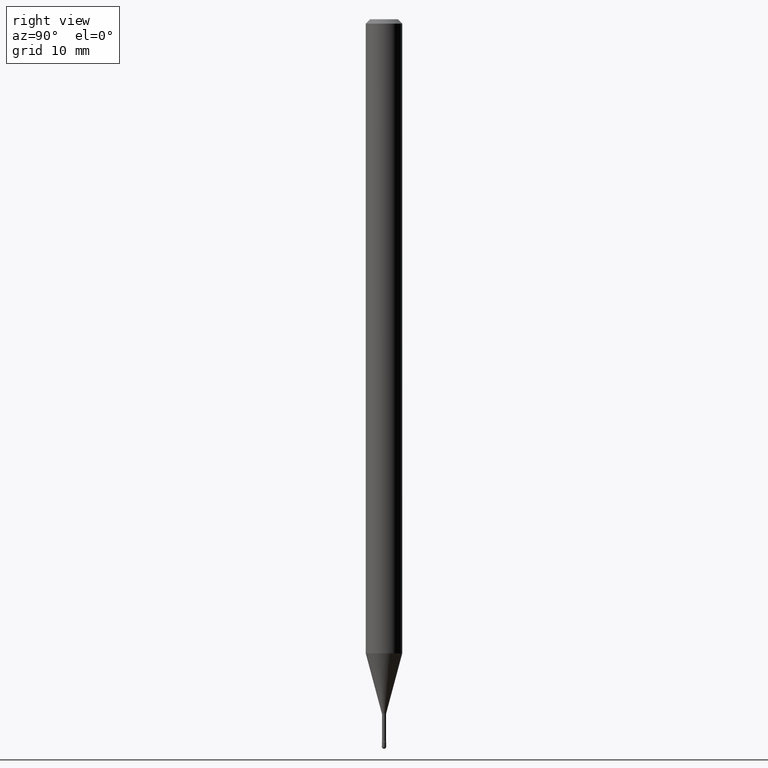
[diagram: clean part render]
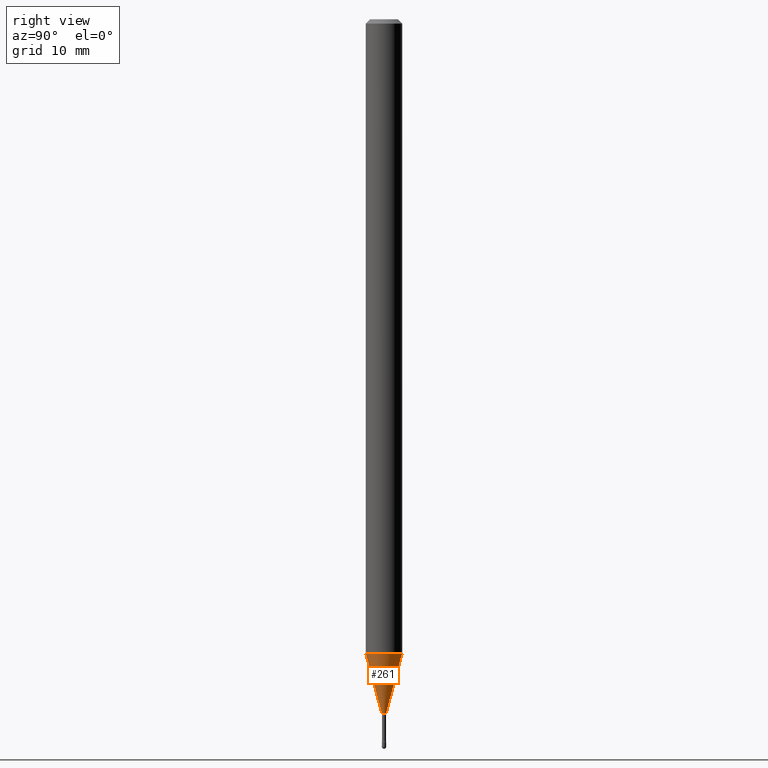
[diagram: same view with one face highlighted and labeled with its STEP entity id]
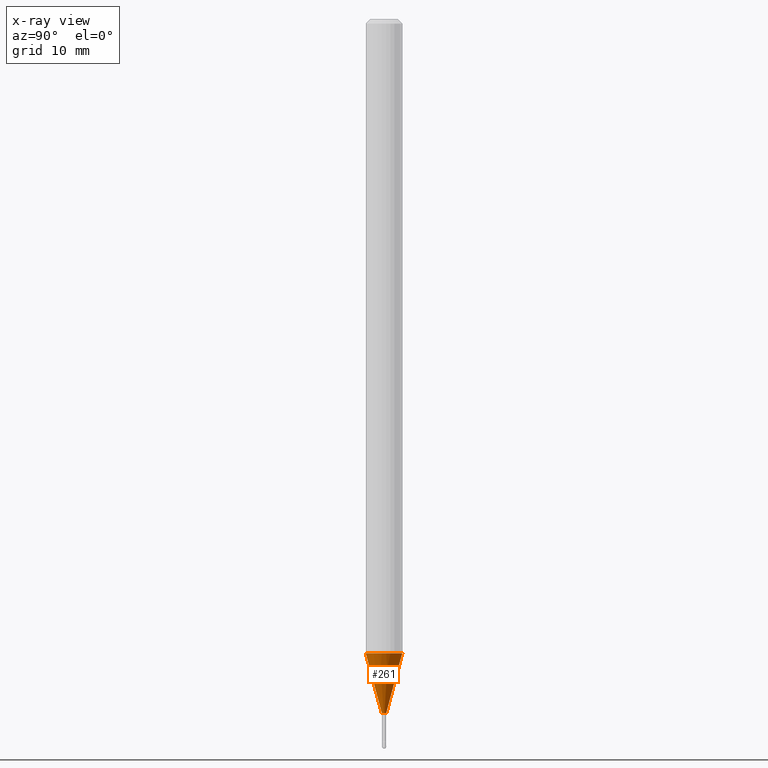
[diagram: x-ray of the same camera — body ghosted, the highlighted face saturated]
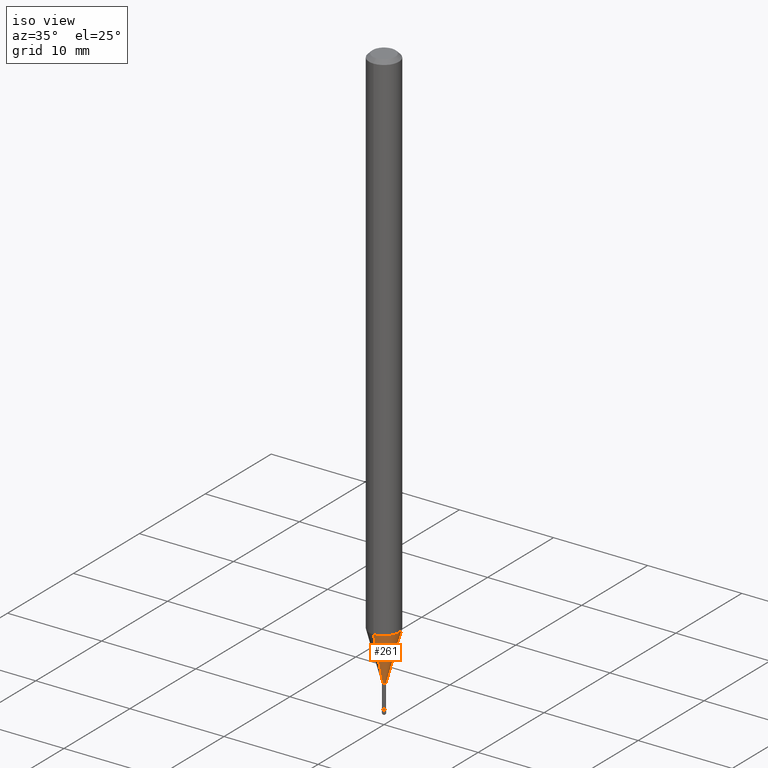
[diagram: same view with one face highlighted and labeled with its STEP entity id]
A machine part, right view. The second image highlights one B-rep face of the part: STEP entity #261.
The next image is the same camera in x-ray: the body ghosted, the highlighted face saturated — about 0% of this face is hidden behind the body in this view.
A second angle (iso view) of the same face is appended — the face is thin or edge-on in the first view.
In plain terms, the highlighted conical surface has half-angle 15 deg.
Its self-contained STEP definition (entity closure, byte-faithful):
#1 = VERTEX_POINT ( 'NONE', #141 ) ;
#34 = CARTESIAN_POINT ( 'NONE',  ( -5.279896712707659243E-17, -0.007561112605672287539, -2.378092501787273161 ) ) ;
#43 = DIRECTION ( 'NONE',  ( -1.807323732225327378E-15, -0.2588190451025177974, 0.9659258262890690894 ) ) ;
#44 = VERTEX_POINT ( 'NONE', #128 ) ;
#52 = DIRECTION ( 'NONE',  ( -6.982962677686265922E-15, -1.000000000000000000, 0.000000000000000000 ) ) ;
#96 = CARTESIAN_POINT ( 'NONE',  ( 5.815604631131429180E-29, -8.302988834086117916E-15, -2.378092501787273161 ) ) ;
#104 = CARTESIAN_POINT ( 'NONE',  ( 5.815604631131429180E-29, -8.302988834086117916E-15, -2.378092501787273161 ) ) ;
#109 = AXIS2_PLACEMENT_3D ( 'NONE', #96, #387, #52 ) ;
#128 = CARTESIAN_POINT ( 'NONE',  ( -4.364351673553386185E-16, -0.06250000000000759115, -2.173057782720305919 ) ) ;
#136 = FACE_OUTER_BOUND ( 'NONE', #508, .T. ) ;
#138 = EDGE_CURVE ( 'NONE', #330, #44, #555, .T. ) ;
#141 = CARTESIAN_POINT ( 'NONE',  ( 4.440892098501156671E-16, 0.06249999999999240885, -2.173057782720306363 ) ) ;
#178 = DIRECTION ( 'NONE',  ( 1.839019923739597160E-15, 0.2588190451025245142, 0.9659258262890670910 ) ) ;
#200 = VECTOR ( 'NONE', #43, 39.37007874015748143 ) ;
#221 = CONICAL_SURFACE ( 'NONE', #523, 0.007561112605663984285, 0.2617993877991498519 ) ;
#228 = CARTESIAN_POINT ( 'NONE',  ( -5.279896712707659243E-17, -0.007561112605672287539, -2.378092501787273161 ) ) ;
#231 = ORIENTED_EDGE ( 'NONE', *, *, #352, .F. ) ;
#261 = ADVANCED_FACE ( 'NONE', ( #136 ), #221, .T. ) ;
#272 = CARTESIAN_POINT ( 'NONE',  ( 5.314194000194058703E-29, -7.587120556576491989E-15, -2.173057782720305919 ) ) ;
#303 = CIRCLE ( 'NONE', #368, 0.06250000000000000000 ) ;
#330 = VERTEX_POINT ( 'NONE', #228 ) ;
#345 = LINE ( 'NONE', #524, #404 ) ;
#352 = EDGE_CURVE ( 'NONE', #44, #1, #303, .T. ) ;
#358 = DIRECTION ( 'NONE',  ( -6.982962677686265922E-15, -1.000000000000000000, 4.370956789862821150E-15 ) ) ;
#368 = AXIS2_PLACEMENT_3D ( 'NONE', #272, #443, #358 ) ;
#387 = DIRECTION ( 'NONE',  ( -2.445491345168729704E-29, 3.491449061735800993E-15, 1.000000000000000000 ) ) ;
#401 = VERTEX_POINT ( 'NONE', #556 ) ;
#404 = VECTOR ( 'NONE', #178, 39.37007874015748854 ) ;
#415 = ORIENTED_EDGE ( 'NONE', *, *, #564, .T. ) ;
#422 = ORIENTED_EDGE ( 'NONE', *, *, #565, .T. ) ;
#443 = DIRECTION ( 'NONE',  ( -2.445491345168729704E-29, 3.491449061735800993E-15, 1.000000000000000000 ) ) ;
#463 = ORIENTED_EDGE ( 'NONE', *, *, #138, .F. ) ;
#494 = CIRCLE ( 'NONE', #109, 0.007561112605663984285 ) ;
#508 = EDGE_LOOP ( 'NONE', ( #415, #422, #231, #463 ) ) ;
#523 = AXIS2_PLACEMENT_3D ( 'NONE', #104, #536, #532 ) ;
#524 = CARTESIAN_POINT ( 'NONE',  ( 5.372493636224481749E-17, 0.007561112605655680163, -2.378092501787273161 ) ) ;
#532 = DIRECTION ( 'NONE',  ( -6.982962677686265922E-15, -1.000000000000000000, 0.000000000000000000 ) ) ;
#536 = DIRECTION ( 'NONE',  ( -2.445491345168729704E-29, 3.491449061735800993E-15, 1.000000000000000000 ) ) ;
#555 = LINE ( 'NONE', #34, #200 ) ;
#556 = CARTESIAN_POINT ( 'NONE',  ( 2.489070731061804118E-16, 0.007561112605655680163, -2.378092501787273161 ) ) ;
#564 = EDGE_CURVE ( 'NONE', #330, #401, #494, .T. ) ;
#565 = EDGE_CURVE ( 'NONE', #401, #1, #345, .T. ) ;